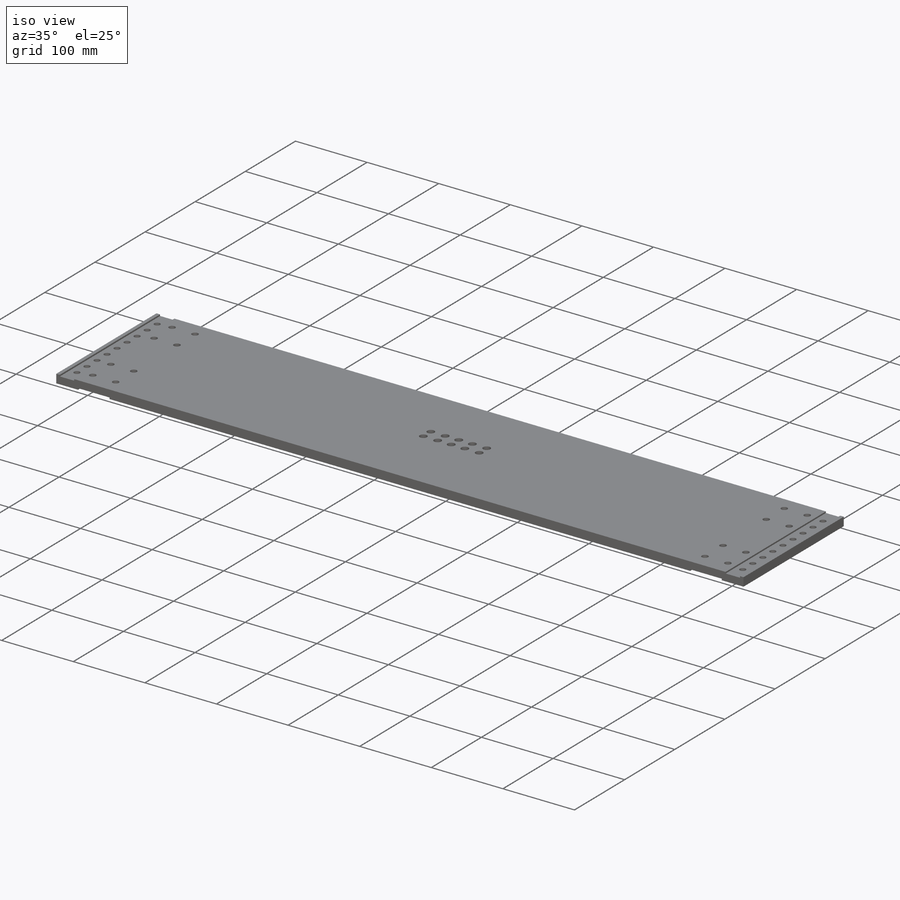
[diagram: iso view]
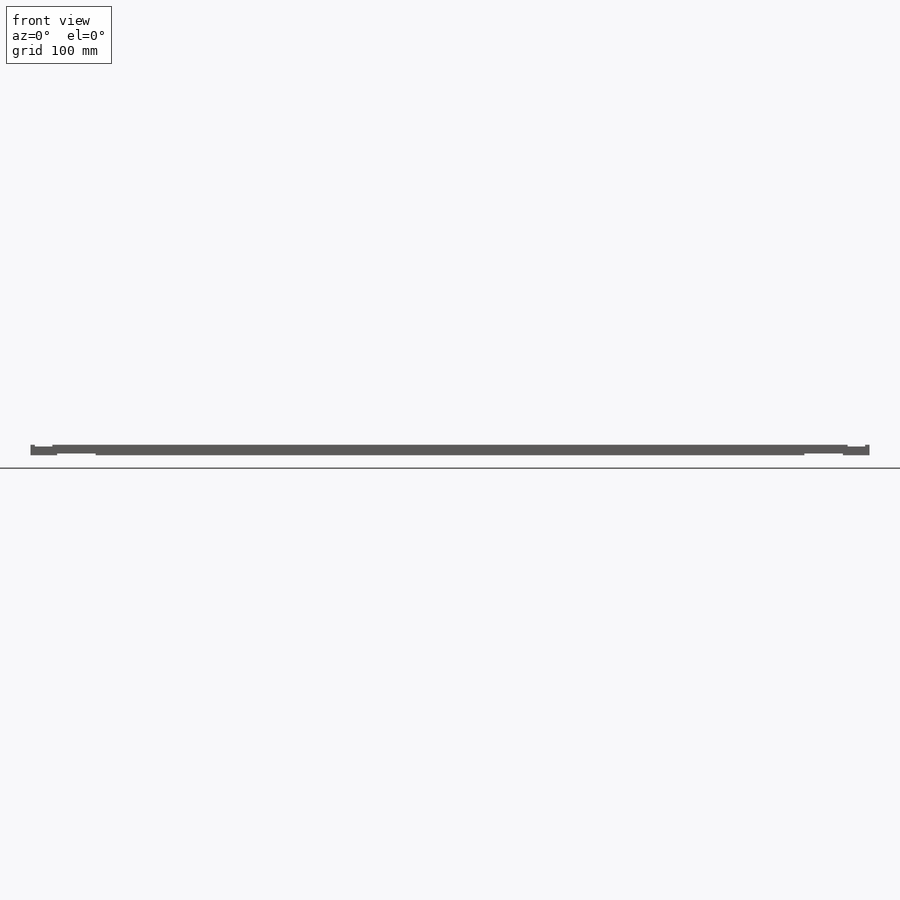
[diagram: front view]
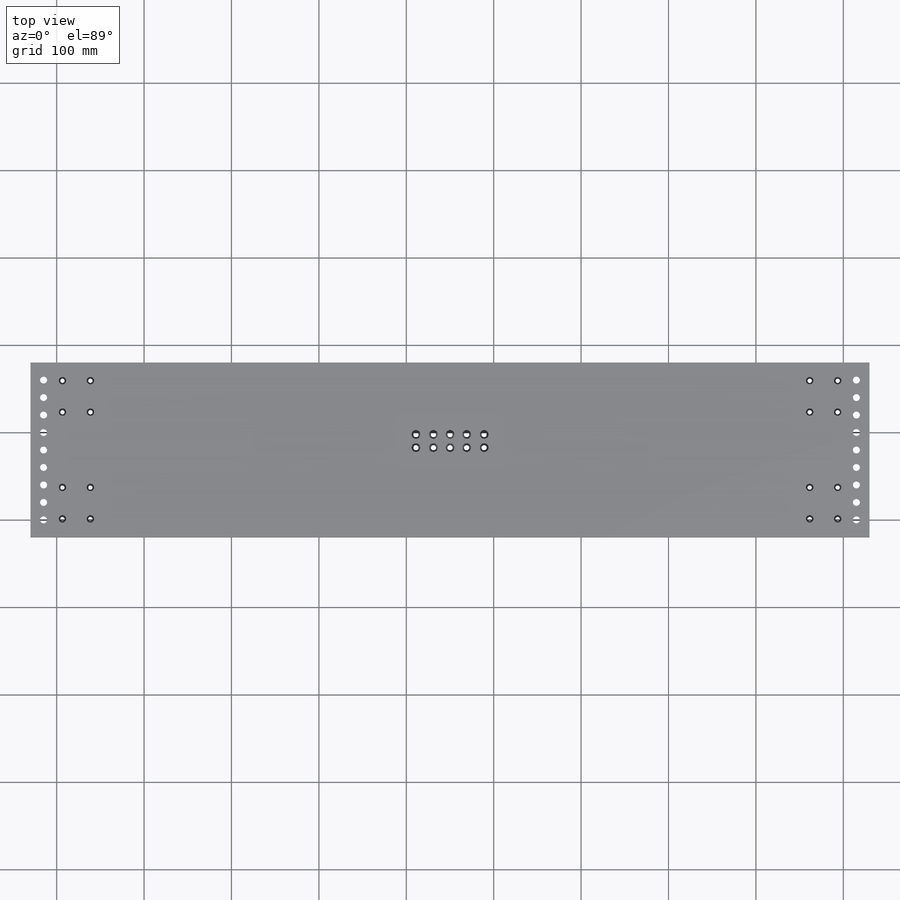
[diagram: top view]
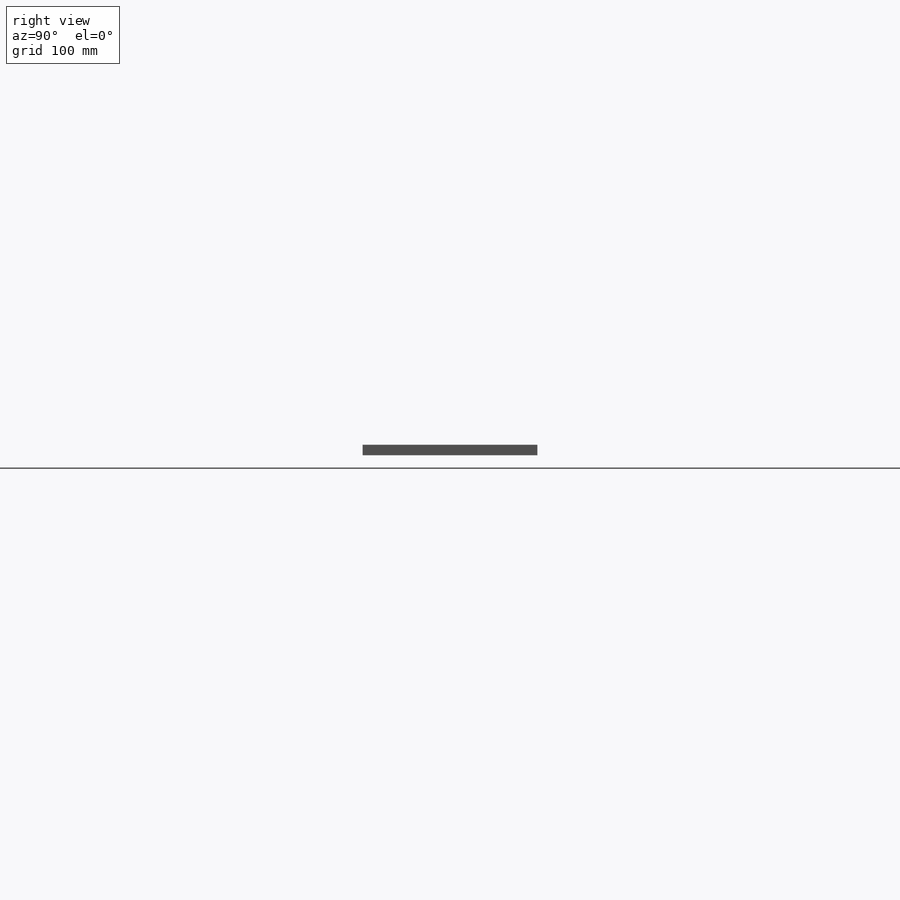
[diagram: right view]
SOLIDWORKS PART (.sldprt)
format: sldprt  version: not decoded by parser v0  size: 1,003,008 bytes
history: native  units: mm
features: sketch x14, cut_extrude x10, extrude x4, material x1 (+12 scaffold rows collapsed)
feature tree (41):
  scaffold x12  (default folders/planes/origin — collapsed)
  material  "7079 Alloy"
  sketch  "Sketch1"  dims[c1.D3=~8.106867mm c1.D1=900.0mm c1.D2=180.0mm c2.D3=20.0mm]
  sketch  "Sketch2"  dims[D1=25.0mm D2=25.0mm D3=5.0mm]
  sketch  "Sketch3"  dims[D1=5.0mm D2=5.0mm D3=20.0mm]
  sketch  "Sketch4"  dims[D1=20.0mm]
  sketch  "Sketch5"  dims[D1=5.0mm]
  extrude  "Extrude5"  Depth=12mm
  extrude  "Extrude6"  Depth=10mm
  cut_extrude  "Cut-Extrude9"  Depth=10mm
  cut_extrude  "Cut-Extrude10"  Depth=4mm
  sketch  "Sketch8"  dims[D1=~3.441699mm]
  cut_extrude  "Cut-Extrude11"  Depth=1.5mm
  extrude  "Extrude7"  Depth=2mm
  sketch  "Sketch9"  dims[D1=4.0mm]
  cut_extrude  "Cut-Extrude12"  Depth=6mm
  sketch  "Sketch10"  dims[D1=~5.237125mm]
  cut_extrude  "Cut-Extrude13"  Depth=5mm
  sketch  "Sketch13"  dims[D1=180.0mm D2=20.0mm]
  cut_extrude  "Cut-Extrude14"  Depth=2mm
  sketch  "Sketch14"  dims[c1.D1=~4.577015mm c1.D2=~4.586923mm c2.D1=11.5mm c2.D2=36.0mm]
  cut_extrude  "Cut-Extrude16"  Depth=12mm
  sketch  "Sketch15"  dims[D1=~5.40803mm]
  cut_extrude  "Cut-Extrude17"  Depth=5mm
  sketch  "Sketch17"  dims[D1=20.0mm]
  cut_extrude  "Cut-Extrude18"  Depth=12mm
  sketch  "Sketch18"  dims[D1=~6.377959mm]
  cut_extrude  "Cut-Extrude19"  Depth=6.5mm
  sketch  "Sketch19"  dims[D1=5.0mm D2=5.0mm]
  extrude  "Extrude8"  Depth=2mm
decode coverage: 28 of 28 modeling features carry decoded parameters
note: ~ marks probable driven/reference dimensions
note: suppression state not decoded; provenance and decode notes live in map.json
